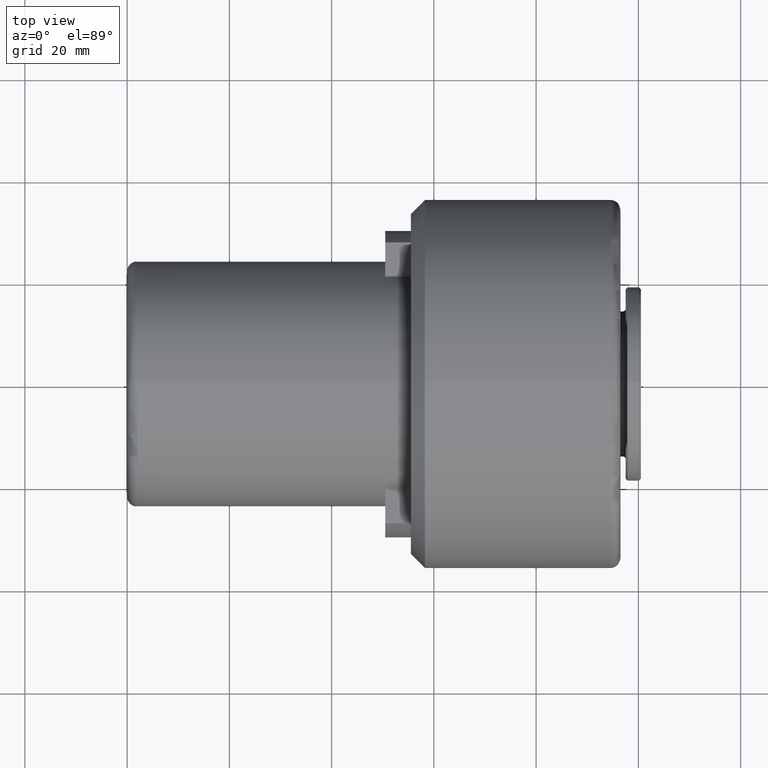
[diagram: clean part render]
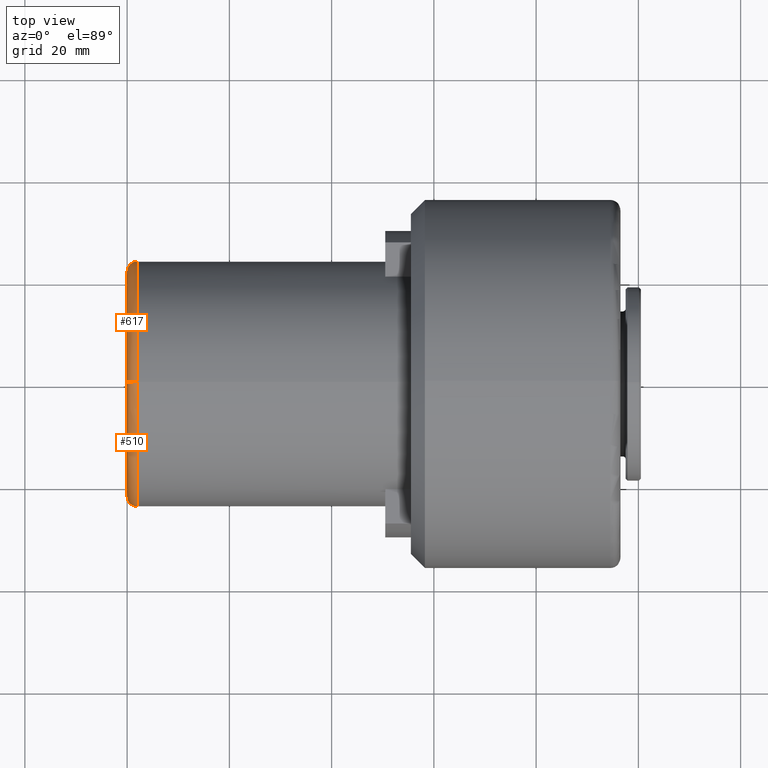
[diagram: same view with one multi-face feature highlighted, each face labeled with its STEP entity id]
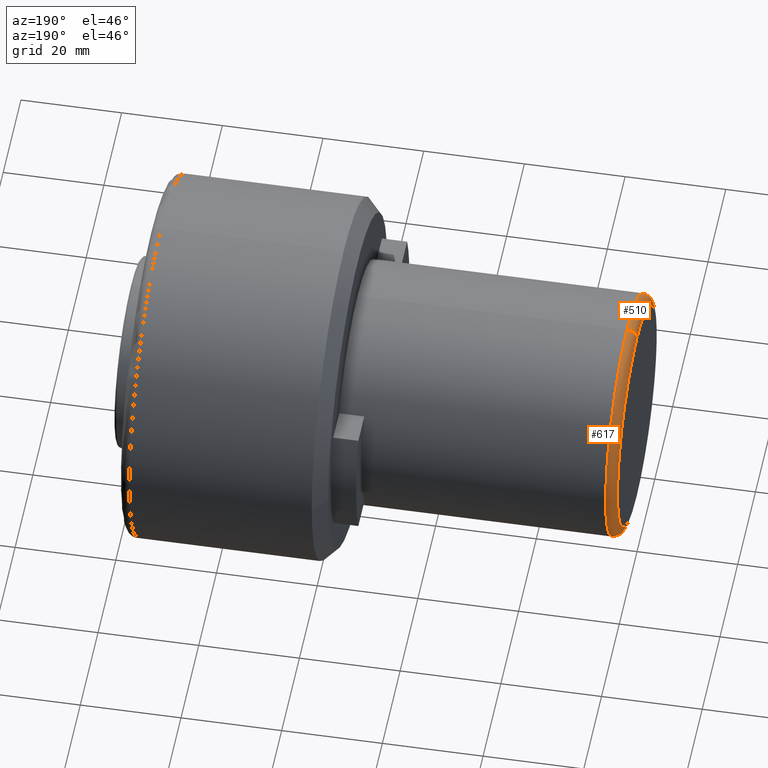
[diagram: same view with one multi-face feature highlighted, each face labeled with its STEP entity id]
A machine part, top view. The highlighted faces form ONE feature: a constant-radius fillet chain: 2 tangent blend faces with common blend radius 2 mm. The faces share edges in the B-rep.
A second angle (auxiliary view) of the same feature is appended — it is thin or edge-on in the first view.
Their STEP definitions:
[1] entity #510 (Torus):
#46 = DIRECTION ( 'NONE',  ( 0.0000000000000000000, 1.000000000000000000, 1.224646799147353200E-016 ) ) ;
#54 = EDGE_LOOP ( 'NONE', ( #1062, #969, #834, #1289 ) ) ;
#93 = AXIS2_PLACEMENT_3D ( 'NONE', #464, #1145, #749 ) ;
#120 = CARTESIAN_POINT ( 'NONE',  ( 2.000000000000001800, 2.939152317953648700E-015, -24.00000000000001100 ) ) ;
#137 = AXIS2_PLACEMENT_3D ( 'NONE', #827, #389, #1243 ) ;
#144 = VERTEX_POINT ( 'NONE', #1298 ) ;
#165 = CIRCLE ( 'NONE', #486, 2.000000000000001800 ) ;
#199 = VERTEX_POINT ( 'NONE', #1160 ) ;
#314 = DIRECTION ( 'NONE',  ( -1.000000000000000000, 0.0000000000000000000, 0.0000000000000000000 ) ) ;
#316 = CIRCLE ( 'NONE', #1297, 2.000000000000001800 ) ;
#389 = DIRECTION ( 'NONE',  ( -1.000000000000000000, 0.0000000000000000000, 0.0000000000000000000 ) ) ;
#464 = CARTESIAN_POINT ( 'NONE',  ( 2.000000000000001800, 0.0000000000000000000, -7.733975497063264400E-015 ) ) ;
#486 = AXIS2_PLACEMENT_3D ( 'NONE', #1220, #587, #1332 ) ;
#495 = TOROIDAL_SURFACE ( 'NONE', #1109, 22.00000000000000000, 2.000000000000000000 ) ;
#510 = ADVANCED_FACE ( 'NONE', ( #742 ), #495, .T. ) ;
#587 = DIRECTION ( 'NONE',  ( 0.0000000000000000000, -1.000000000000000000, 0.0000000000000000000 ) ) ;
#615 = VERTEX_POINT ( 'NONE', #1044 ) ;
#690 = CARTESIAN_POINT ( 'NONE',  ( 2.000000000000001800, 2.694222958124176800E-015, -22.00000000000000700 ) ) ;
#719 = EDGE_CURVE ( 'NONE', #615, #1159, #1167, .T. ) ;
#742 = FACE_OUTER_BOUND ( 'NONE', #54, .T. ) ;
#749 = DIRECTION ( 'NONE',  ( 0.0000000000000000000, 0.0000000000000000000, 1.000000000000000000 ) ) ;
#770 = CIRCLE ( 'NONE', #137, 22.00000000000000000 ) ;
#794 = DIRECTION ( 'NONE',  ( 0.0000000000000000000, -1.224646799147351500E-016, 1.000000000000000000 ) ) ;
#827 = CARTESIAN_POINT ( 'NONE',  ( 0.0000000000000000000, 0.0000000000000000000, -7.733975497063264400E-015 ) ) ;
#834 = ORIENTED_EDGE ( 'NONE', *, *, #1377, .T. ) ;
#906 = EDGE_CURVE ( 'NONE', #144, #199, #770, .T. ) ;
#969 = ORIENTED_EDGE ( 'NONE', *, *, #719, .F. ) ;
#1044 = CARTESIAN_POINT ( 'NONE',  ( 2.000000000000001800, 0.0000000000000000000, 23.99999999999999300 ) ) ;
#1050 = EDGE_CURVE ( 'NONE', #1159, #144, #316, .T. ) ;
#1062 = ORIENTED_EDGE ( 'NONE', *, *, #1050, .F. ) ;
#1109 = AXIS2_PLACEMENT_3D ( 'NONE', #1141, #314, #1132 ) ;
#1132 = DIRECTION ( 'NONE',  ( 0.0000000000000000000, 0.0000000000000000000, 1.000000000000000000 ) ) ;
#1141 = CARTESIAN_POINT ( 'NONE',  ( 2.000000000000001800, 0.0000000000000000000, -7.733975497063264400E-015 ) ) ;
#1145 = DIRECTION ( 'NONE',  ( 1.000000000000000000, -0.0000000000000000000, -0.0000000000000000000 ) ) ;
#1159 = VERTEX_POINT ( 'NONE', #120 ) ;
#1160 = CARTESIAN_POINT ( 'NONE',  ( 0.0000000000000000000, 0.0000000000000000000, 21.99999999999999300 ) ) ;
#1167 = CIRCLE ( 'NONE', #93, 24.00000000000000000 ) ;
#1220 = CARTESIAN_POINT ( 'NONE',  ( 2.000000000000001800, 0.0000000000000000000, 21.99999999999999300 ) ) ;
#1243 = DIRECTION ( 'NONE',  ( 0.0000000000000000000, 0.0000000000000000000, 1.000000000000000000 ) ) ;
#1289 = ORIENTED_EDGE ( 'NONE', *, *, #906, .F. ) ;
#1297 = AXIS2_PLACEMENT_3D ( 'NONE', #690, #46, #794 ) ;
#1298 = CARTESIAN_POINT ( 'NONE',  ( 0.0000000000000000000, 2.816687638038912400E-015, -22.00000000000000700 ) ) ;
#1332 = DIRECTION ( 'NONE',  ( 0.0000000000000000000, 0.0000000000000000000, -1.000000000000000000 ) ) ;
#1377 = EDGE_CURVE ( 'NONE', #615, #199, #165, .T. ) ;
[2] entity #617 (Torus):
#46 = DIRECTION ( 'NONE',  ( 0.0000000000000000000, 1.000000000000000000, 1.224646799147353200E-016 ) ) ;
#47 = CIRCLE ( 'NONE', #1270, 22.00000000000000000 ) ;
#52 = EDGE_CURVE ( 'NONE', #1159, #615, #201, .T. ) ;
#94 = FACE_OUTER_BOUND ( 'NONE', #235, .T. ) ;
#116 = CARTESIAN_POINT ( 'NONE',  ( 2.000000000000001800, 0.0000000000000000000, -7.733975497063264400E-015 ) ) ;
#120 = CARTESIAN_POINT ( 'NONE',  ( 2.000000000000001800, 2.939152317953648700E-015, -24.00000000000001100 ) ) ;
#144 = VERTEX_POINT ( 'NONE', #1298 ) ;
#165 = CIRCLE ( 'NONE', #486, 2.000000000000001800 ) ;
#199 = VERTEX_POINT ( 'NONE', #1160 ) ;
#201 = CIRCLE ( 'NONE', #350, 24.00000000000000000 ) ;
#235 = EDGE_LOOP ( 'NONE', ( #1352, #955, #696, #1128 ) ) ;
#249 = AXIS2_PLACEMENT_3D ( 'NONE', #116, #674, #1232 ) ;
#316 = CIRCLE ( 'NONE', #1297, 2.000000000000001800 ) ;
#350 = AXIS2_PLACEMENT_3D ( 'NONE', #755, #1003, #358 ) ;
#358 = DIRECTION ( 'NONE',  ( 0.0000000000000000000, 0.0000000000000000000, 1.000000000000000000 ) ) ;
#438 = DIRECTION ( 'NONE',  ( -1.000000000000000000, 0.0000000000000000000, 0.0000000000000000000 ) ) ;
#486 = AXIS2_PLACEMENT_3D ( 'NONE', #1220, #587, #1332 ) ;
#587 = DIRECTION ( 'NONE',  ( 0.0000000000000000000, -1.000000000000000000, 0.0000000000000000000 ) ) ;
#615 = VERTEX_POINT ( 'NONE', #1044 ) ;
#617 = ADVANCED_FACE ( 'NONE', ( #94 ), #959, .T. ) ;
#674 = DIRECTION ( 'NONE',  ( -1.000000000000000000, 0.0000000000000000000, 0.0000000000000000000 ) ) ;
#690 = CARTESIAN_POINT ( 'NONE',  ( 2.000000000000001800, 2.694222958124176800E-015, -22.00000000000000700 ) ) ;
#696 = ORIENTED_EDGE ( 'NONE', *, *, #781, .F. ) ;
#755 = CARTESIAN_POINT ( 'NONE',  ( 2.000000000000001800, 0.0000000000000000000, -7.733975497063264400E-015 ) ) ;
#781 = EDGE_CURVE ( 'NONE', #199, #144, #47, .T. ) ;
#794 = DIRECTION ( 'NONE',  ( 0.0000000000000000000, -1.224646799147351500E-016, 1.000000000000000000 ) ) ;
#955 = ORIENTED_EDGE ( 'NONE', *, *, #1050, .T. ) ;
#959 = TOROIDAL_SURFACE ( 'NONE', #249, 22.00000000000000000, 2.000000000000000000 ) ;
#1003 = DIRECTION ( 'NONE',  ( 1.000000000000000000, -0.0000000000000000000, -0.0000000000000000000 ) ) ;
#1044 = CARTESIAN_POINT ( 'NONE',  ( 2.000000000000001800, 0.0000000000000000000, 23.99999999999999300 ) ) ;
#1050 = EDGE_CURVE ( 'NONE', #1159, #144, #316, .T. ) ;
#1094 = DIRECTION ( 'NONE',  ( 0.0000000000000000000, 0.0000000000000000000, 1.000000000000000000 ) ) ;
#1128 = ORIENTED_EDGE ( 'NONE', *, *, #1377, .F. ) ;
#1159 = VERTEX_POINT ( 'NONE', #120 ) ;
#1160 = CARTESIAN_POINT ( 'NONE',  ( 0.0000000000000000000, 0.0000000000000000000, 21.99999999999999300 ) ) ;
#1220 = CARTESIAN_POINT ( 'NONE',  ( 2.000000000000001800, 0.0000000000000000000, 21.99999999999999300 ) ) ;
#1232 = DIRECTION ( 'NONE',  ( 0.0000000000000000000, 0.0000000000000000000, 1.000000000000000000 ) ) ;
#1245 = CARTESIAN_POINT ( 'NONE',  ( 0.0000000000000000000, 0.0000000000000000000, -7.733975497063264400E-015 ) ) ;
#1270 = AXIS2_PLACEMENT_3D ( 'NONE', #1245, #438, #1094 ) ;
#1297 = AXIS2_PLACEMENT_3D ( 'NONE', #690, #46, #794 ) ;
#1298 = CARTESIAN_POINT ( 'NONE',  ( 0.0000000000000000000, 2.816687638038912400E-015, -22.00000000000000700 ) ) ;
#1332 = DIRECTION ( 'NONE',  ( 0.0000000000000000000, 0.0000000000000000000, -1.000000000000000000 ) ) ;
#1352 = ORIENTED_EDGE ( 'NONE', *, *, #52, .F. ) ;
#1377 = EDGE_CURVE ( 'NONE', #615, #199, #165, .T. ) ;